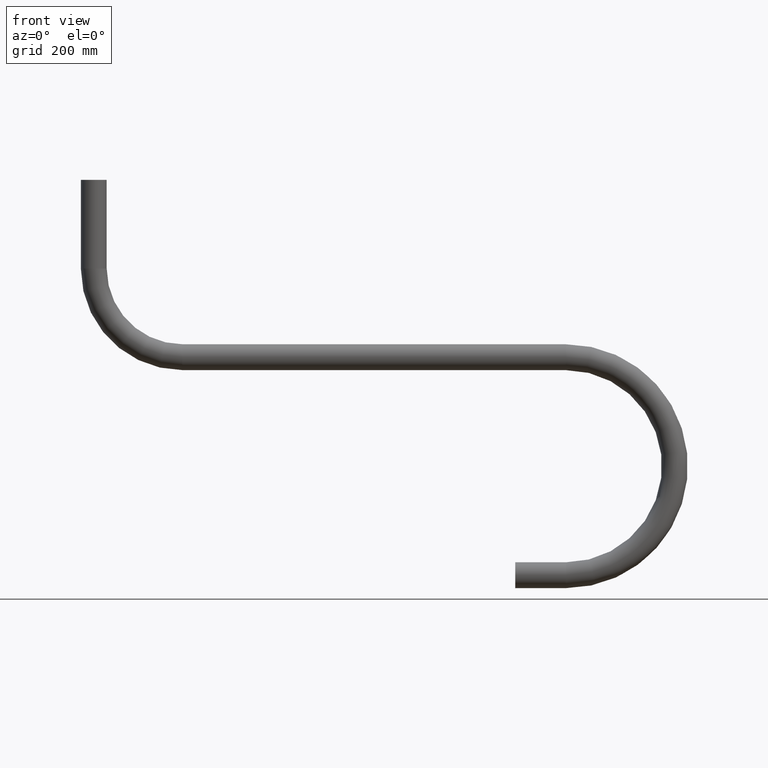
[diagram: clean part render]
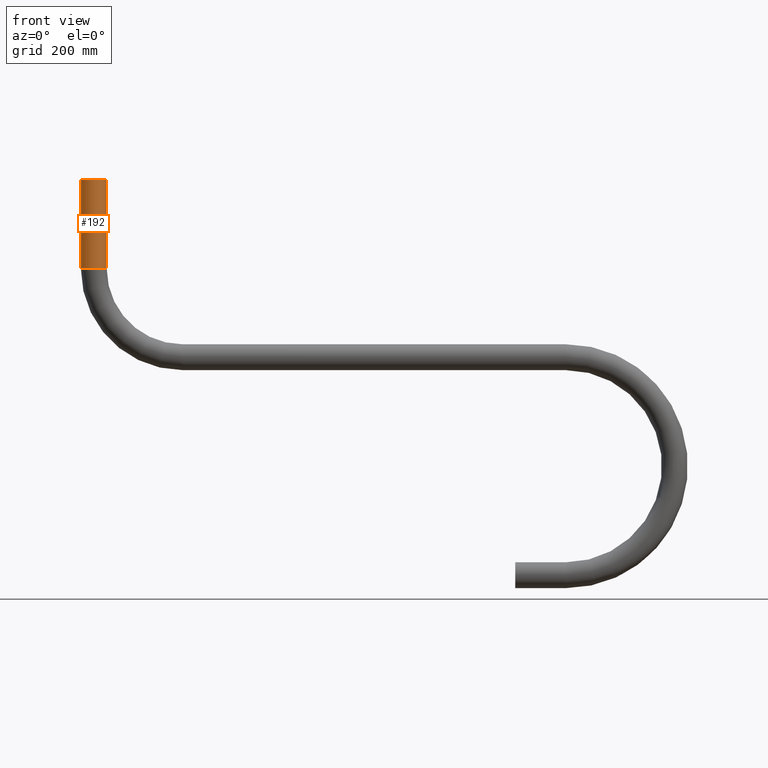
[diagram: same view with one face highlighted and labeled with its STEP entity id]
A machine part, front view. The second image highlights one B-rep face of the part: STEP entity #192.
In plain terms, the highlighted cylindrical surface (edge-blend (fillet) strip) has radius 44.45 mm, axis along (-0, -0, 1).
Its self-contained STEP definition (entity closure, byte-faithful):
#4 = EDGE_LOOP ( 'NONE', ( #307, #152, #154, #271 ) ) ;
#29 = CARTESIAN_POINT ( 'NONE',  ( -920.0500000000000682, 0.000000000000000000, 305.0000000000001137 ) ) ;
#37 = DIRECTION ( 'NONE',  ( -1.000000000000000000, 0.000000000000000000, 0.000000000000000000 ) ) ;
#75 = AXIS2_PLACEMENT_3D ( 'NONE', #153, #156, #507 ) ;
#83 = CARTESIAN_POINT ( 'NONE',  ( -1008.950000000000045, 5.443555022209988853E-15, 305.0000000000001137 ) ) ;
#106 = VECTOR ( 'NONE', #372, 1000.000000000000000 ) ;
#110 = CYLINDRICAL_SURFACE ( 'NONE', #75, 44.44999999999998863 ) ;
#113 = VERTEX_POINT ( 'NONE', #430 ) ;
#114 = EDGE_CURVE ( 'NONE', #261, #404, #463, .T. ) ;
#144 = EDGE_CURVE ( 'NONE', #261, #366, #482, .T. ) ;
#152 = ORIENTED_EDGE ( 'NONE', *, *, #114, .F. ) ;
#153 = CARTESIAN_POINT ( 'NONE',  ( -964.5000000000000000, 0.000000000000000000, 305.0000000000001137 ) ) ;
#154 = ORIENTED_EDGE ( 'NONE', *, *, #144, .T. ) ;
#156 = DIRECTION ( 'NONE',  ( -0.000000000000000000, -0.000000000000000000, 1.000000000000000000 ) ) ;
#173 = CIRCLE ( 'NONE', #505, 44.44999999999998863 ) ;
#192 = ADVANCED_FACE ( 'NONE', ( #461 ), #110, .T. ) ;
#232 = DIRECTION ( 'NONE',  ( -0.000000000000000000, -0.000000000000000000, 1.000000000000000000 ) ) ;
#261 = VERTEX_POINT ( 'NONE', #514 ) ;
#268 = DIRECTION ( 'NONE',  ( -1.000000000000000000, 0.000000000000000000, 0.000000000000000000 ) ) ;
#271 = ORIENTED_EDGE ( 'NONE', *, *, #380, .T. ) ;
#277 = CARTESIAN_POINT ( 'NONE',  ( -964.5000000000000000, 0.000000000000000000, 609.9999999999998863 ) ) ;
#307 = ORIENTED_EDGE ( 'NONE', *, *, #400, .F. ) ;
#366 = VERTEX_POINT ( 'NONE', #422 ) ;
#372 = DIRECTION ( 'NONE',  ( -0.000000000000000000, -0.000000000000000000, 1.000000000000000000 ) ) ;
#380 = EDGE_CURVE ( 'NONE', #366, #113, #173, .T. ) ;
#400 = EDGE_CURVE ( 'NONE', #404, #113, #530, .T. ) ;
#404 = VERTEX_POINT ( 'NONE', #83 ) ;
#422 = CARTESIAN_POINT ( 'NONE',  ( -920.0500000000000682, 0.000000000000000000, 609.9999999999998863 ) ) ;
#430 = CARTESIAN_POINT ( 'NONE',  ( -1008.950000000000045, 5.443555022209988853E-15, 609.9999999999998863 ) ) ;
#435 = CARTESIAN_POINT ( 'NONE',  ( -964.5000000000000000, 0.000000000000000000, 305.0000000000001137 ) ) ;
#437 = DIRECTION ( 'NONE',  ( -2.465190328815661892E-32, 0.000000000000000000, -1.000000000000000000 ) ) ;
#461 = FACE_OUTER_BOUND ( 'NONE', #4, .T. ) ;
#463 = CIRCLE ( 'NONE', #495, 44.44999999999998863 ) ;
#481 = DIRECTION ( 'NONE',  ( -2.465190328815661892E-32, 0.000000000000000000, -1.000000000000000000 ) ) ;
#482 = LINE ( 'NONE', #29, #571 ) ;
#495 = AXIS2_PLACEMENT_3D ( 'NONE', #435, #437, #37 ) ;
#505 = AXIS2_PLACEMENT_3D ( 'NONE', #277, #481, #268 ) ;
#507 = DIRECTION ( 'NONE',  ( 1.000000000000000000, 0.000000000000000000, 0.000000000000000000 ) ) ;
#514 = CARTESIAN_POINT ( 'NONE',  ( -920.0500000000000682, 0.000000000000000000, 305.0000000000001137 ) ) ;
#519 = CARTESIAN_POINT ( 'NONE',  ( -1008.950000000000045, 5.443555022209986486E-15, 305.0000000000001137 ) ) ;
#530 = LINE ( 'NONE', #519, #106 ) ;
#571 = VECTOR ( 'NONE', #232, 1000.000000000000000 ) ;